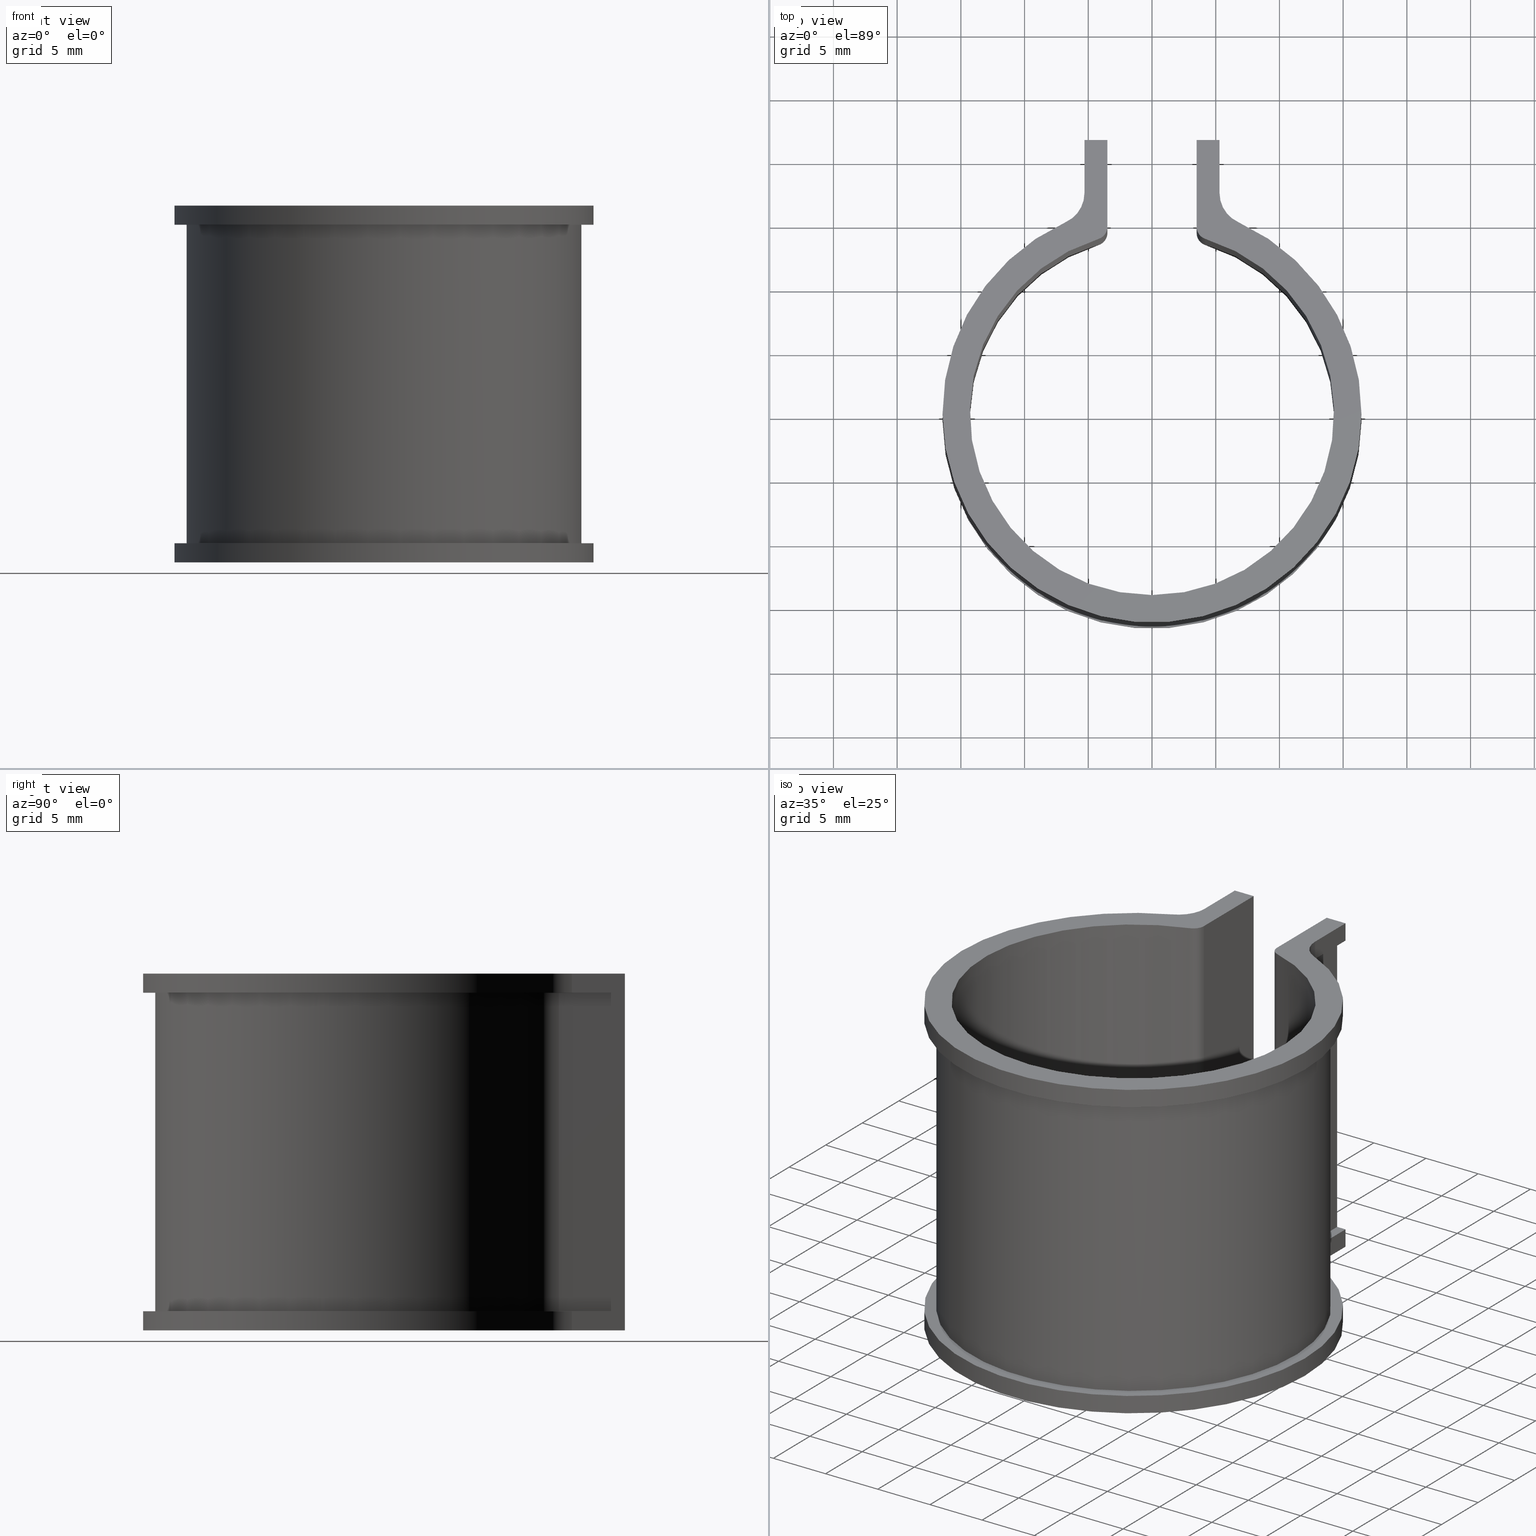
[diagram: canonical four-view strip — front | top / right | iso, engineering-drawing reading convention]
A machine part, canonical four-view strip (front | top / right | iso — engineering-drawing reading convention). The complete STEP part file that produces these views, byte-faithful:
ISO-10303-21;
HEADER;
FILE_DESCRIPTION( ( 'STEP AP203' ), '1' );
FILE_NAME( 'C:/Documents and Settings/JP/�f�X�N�g�b�v/�_�E�����[�h�pCAD�f�[�^/�p�C�v�}�[�J�[/25SU/25SU.step', '2022-07-20T05:23:00', ( ' ' ), ( ' ' ), 'XStep 1.0', ' ', ' ' );
FILE_SCHEMA( ( 'CONFIG_CONTROL_DESIGN' ) );
ENDSEC;
DATA;
#1 = DESIGN_CONTEXT( '', #27, 'design' );
#2 = APPLICATION_PROTOCOL_DEFINITION( 'INTERNATIONAL STANDARD', 'config_control_design', 1994, #27 );
#3 = PRODUCT_CATEGORY_RELATIONSHIP( 'NONE', 'NONE', #28, #29 );
#4 = DATE_AND_TIME( #30, #31 );
#5 = DATE_TIME_ROLE( 'creation_date' );
#6 = DATE_TIME_ROLE( 'classification_date' );
#7 = PERSON_AND_ORGANIZATION_ROLE( 'creator' );
#8 = PERSON_AND_ORGANIZATION_ROLE( 'design_supplier' );
#9 = PERSON_AND_ORGANIZATION_ROLE( 'classification_officer' );
#10 = PERSON_AND_ORGANIZATION_ROLE( 'design_owner' );
#11 = APPROVAL_PERSON_ORGANIZATION( #32, #33, #34 );
#12 = APPROVAL_DATE_TIME( #4, #33 );
#13 = CC_DESIGN_APPROVAL( #33, ( #35, #36, #37 ) );
#14 = CC_DESIGN_DATE_AND_TIME_ASSIGNMENT( #4, #5, ( #37 ) );
#15 = CC_DESIGN_DATE_AND_TIME_ASSIGNMENT( #4, #6, ( #35 ) );
#16 = CC_DESIGN_PERSON_AND_ORGANIZATION_ASSIGNMENT( #32, #10, ( #38 ) );
#17 = CC_DESIGN_PERSON_AND_ORGANIZATION_ASSIGNMENT( #32, #7, ( #37 ) );
#18 = CC_DESIGN_PERSON_AND_ORGANIZATION_ASSIGNMENT( #32, #7, ( #36 ) );
#19 = CC_DESIGN_PERSON_AND_ORGANIZATION_ASSIGNMENT( #32, #8, ( #36 ) );
#20 = CC_DESIGN_SECURITY_CLASSIFICATION( #35, ( #36 ) );
#21 = CC_DESIGN_PERSON_AND_ORGANIZATION_ASSIGNMENT( #32, #9, ( #35 ) );
#22 = SHAPE_DEFINITION_REPRESENTATION( #39, #40 );
#23 =  ( GEOMETRIC_REPRESENTATION_CONTEXT( 3 )GLOBAL_UNCERTAINTY_ASSIGNED_CONTEXT( ( #43 ) )GLOBAL_UNIT_ASSIGNED_CONTEXT( ( #45, #46, #47 ) )REPRESENTATION_CONTEXT( 'NONE', 'WORKSPACE' ) );
#27 = APPLICATION_CONTEXT( 'CONFIGURATION CONTROLLED 3D DESIGNS OF MECHANICAL PARTS AND ASSEMBLIES' );
#28 = PRODUCT_CATEGORY( 'part', 'NONE' );
#29 = PRODUCT_RELATED_PRODUCT_CATEGORY( 'detail', ' ', ( #38 ) );
#30 = CALENDAR_DATE( 2022, 20, 6 );
#31 = LOCAL_TIME( 14, 23, 0.000000000000000, #49 );
#32 = PERSON_AND_ORGANIZATION( #50, #51 );
#33 = APPROVAL( #52, 'SOLID MODEL' );
#34 = APPROVAL_ROLE( 'APPROVED' );
#35 = SECURITY_CLASSIFICATION( '', '', #53 );
#36 = PRODUCT_DEFINITION_FORMATION_WITH_SPECIFIED_SOURCE( ' ', 'NONE', #38, .NOT_KNOWN. );
#37 = PRODUCT_DEFINITION( 'NONE', 'NONE', #36, #1 );
#38 = PRODUCT( '1', '1', 'PART-1-DESC', ( #54 ) );
#39 = PRODUCT_DEFINITION_SHAPE( 'NONE', 'NONE', #37 );
#40 = ADVANCED_BREP_SHAPE_REPRESENTATION( '1', ( #55, #56 ), #23 );
#43 = UNCERTAINTY_MEASURE_WITH_UNIT( LENGTH_MEASURE( 0.00100000000000000 ), #45, '', '' );
#45 =  ( CONVERSION_BASED_UNIT( 'MILLIMETRE', #59 )LENGTH_UNIT(  )NAMED_UNIT( #62 ) );
#46 =  ( NAMED_UNIT( #64 )PLANE_ANGLE_UNIT(  )SI_UNIT( $, .RADIAN. ) );
#47 =  ( NAMED_UNIT( #64 )SOLID_ANGLE_UNIT(  )SI_UNIT( $, .STERADIAN. ) );
#49 = COORDINATED_UNIVERSAL_TIME_OFFSET( 9, 0, .AHEAD. );
#50 = PERSON( '', 'UNSPECIFIED', $, $, $, $ );
#51 = ORGANIZATION( 'UNSPECIFIED', 'UNSPECIFIED', 'UNSPECIFIED' );
#52 = APPROVAL_STATUS( 'approved' );
#53 = SECURITY_CLASSIFICATION_LEVEL( 'unclassified' );
#54 = MECHANICAL_CONTEXT( '', #27, 'mechanical' );
#55 = MANIFOLD_SOLID_BREP( '1', #70 );
#56 = AXIS2_PLACEMENT_3D( '', #71, #72, #73 );
#59 = LENGTH_MEASURE_WITH_UNIT( LENGTH_MEASURE( 1.00000000000000 ), #74 );
#62 = DIMENSIONAL_EXPONENTS( 1.00000000000000, 0.000000000000000, 0.000000000000000, 0.000000000000000, 0.000000000000000, 0.000000000000000, 0.000000000000000 );
#64 = DIMENSIONAL_EXPONENTS( 0.000000000000000, 0.000000000000000, 0.000000000000000, 0.000000000000000, 0.000000000000000, 0.000000000000000, 0.000000000000000 );
#70 = CLOSED_SHELL( '', ( #75, #76, #77, #78, #79, #80, #81, #82, #83, #84, #85, #86, #87, #88, #89, #90, #91, #92, #93, #94, #95, #96, #97, #98, #99, #100 ) );
#71 = CARTESIAN_POINT( '', ( 0.000000000000000, 0.000000000000000, 0.000000000000000 ) );
#72 = DIRECTION( '', ( 0.000000000000000, 0.000000000000000, 1.00000000000000 ) );
#73 = DIRECTION( '', ( 1.00000000000000, 0.000000000000000, 0.000000000000000 ) );
#74 =  ( NAMED_UNIT( #62 )LENGTH_UNIT(  )SI_UNIT( .MILLI., .METRE. ) );
#75 = ADVANCED_FACE( '', ( #102 ), #103, .T. );
#76 = ADVANCED_FACE( '', ( #104 ), #105, .T. );
#77 = ADVANCED_FACE( '', ( #106 ), #107, .T. );
#78 = ADVANCED_FACE( '', ( #108 ), #109, .T. );
#79 = ADVANCED_FACE( '', ( #110 ), #111, .T. );
#80 = ADVANCED_FACE( '', ( #112 ), #113, .F. );
#81 = ADVANCED_FACE( '', ( #114 ), #115, .F. );
#82 = ADVANCED_FACE( '', ( #116 ), #117, .T. );
#83 = ADVANCED_FACE( '', ( #118 ), #119, .F. );
#84 = ADVANCED_FACE( '', ( #120 ), #121, .F. );
#85 = ADVANCED_FACE( '', ( #122 ), #123, .T. );
#86 = ADVANCED_FACE( '', ( #124 ), #125, .T. );
#87 = ADVANCED_FACE( '', ( #126 ), #127, .F. );
#88 = ADVANCED_FACE( '', ( #128 ), #129, .F. );
#89 = ADVANCED_FACE( '', ( #130 ), #131, .T. );
#90 = ADVANCED_FACE( '', ( #132 ), #133, .T. );
#91 = ADVANCED_FACE( '', ( #134 ), #135, .F. );
#92 = ADVANCED_FACE( '', ( #136 ), #137, .F. );
#93 = ADVANCED_FACE( '', ( #138 ), #139, .F. );
#94 = ADVANCED_FACE( '', ( #140 ), #141, .F. );
#95 = ADVANCED_FACE( '', ( #142 ), #143, .T. );
#96 = ADVANCED_FACE( '', ( #144 ), #145, .T. );
#97 = ADVANCED_FACE( '', ( #146 ), #147, .T. );
#98 = ADVANCED_FACE( '', ( #148 ), #149, .T. );
#99 = ADVANCED_FACE( '', ( #150 ), #151, .T. );
#100 = ADVANCED_FACE( '', ( #152 ), #153, .F. );
#102 = FACE_OUTER_BOUND( '', #154, .T. );
#103 = PLANE( '', #155 );
#104 = FACE_OUTER_BOUND( '', #156, .T. );
#105 = PLANE( '', #157 );
#106 = FACE_OUTER_BOUND( '', #158, .T. );
#107 = PLANE( '', #159 );
#108 = FACE_OUTER_BOUND( '', #160, .T. );
#109 = PLANE( '', #161 );
#110 = FACE_OUTER_BOUND( '', #162, .T. );
#111 = PLANE( '', #163 );
#112 = FACE_OUTER_BOUND( '', #164, .T. );
#113 = PLANE( '', #165 );
#114 = FACE_OUTER_BOUND( '', #166, .T. );
#115 = PLANE( '', #167 );
#116 = FACE_OUTER_BOUND( '', #168, .T. );
#117 = PLANE( '', #169 );
#118 = FACE_OUTER_BOUND( '', #170, .T. );
#119 = CYLINDRICAL_SURFACE( '', #171, 2.50000000000000 );
#120 = FACE_OUTER_BOUND( '', #172, .T. );
#121 = PLANE( '', #173 );
#122 = FACE_OUTER_BOUND( '', #174, .T. );
#123 = PLANE( '', #175 );
#124 = FACE_OUTER_BOUND( '', #176, .T. );
#125 = CYLINDRICAL_SURFACE( '', #177, 1.00000000000000 );
#126 = FACE_OUTER_BOUND( '', #178, .T. );
#127 = PLANE( '', #179 );
#128 = FACE_OUTER_BOUND( '', #180, .T. );
#129 = CYLINDRICAL_SURFACE( '', #181, 14.2900000000000 );
#130 = FACE_OUTER_BOUND( '', #182, .T. );
#131 = CYLINDRICAL_SURFACE( '', #183, 1.00000000000000 );
#132 = FACE_OUTER_BOUND( '', #184, .T. );
#133 = PLANE( '', #185 );
#134 = FACE_OUTER_BOUND( '', #186, .T. );
#135 = CYLINDRICAL_SURFACE( '', #187, 2.50000000000000 );
#136 = FACE_OUTER_BOUND( '', #188, .T. );
#137 = CYLINDRICAL_SURFACE( '', #189, 2.50000000000000 );
#138 = FACE_OUTER_BOUND( '', #190, .T. );
#139 = CYLINDRICAL_SURFACE( '', #191, 2.50000000000000 );
#140 = FACE_OUTER_BOUND( '', #192, .T. );
#141 = CYLINDRICAL_SURFACE( '', #193, 2.00000000000000 );
#142 = FACE_OUTER_BOUND( '', #194, .T. );
#143 = CYLINDRICAL_SURFACE( '', #195, 15.4900000000000 );
#144 = FACE_OUTER_BOUND( '', #196, .T. );
#145 = PLANE( '', #197 );
#146 = FACE_OUTER_BOUND( '', #198, .T. );
#147 = CYLINDRICAL_SURFACE( '', #199, 16.4400000000000 );
#148 = FACE_OUTER_BOUND( '', #200, .T. );
#149 = CYLINDRICAL_SURFACE( '', #201, 16.4400000000000 );
#150 = FACE_OUTER_BOUND( '', #202, .T. );
#151 = PLANE( '', #203 );
#152 = FACE_OUTER_BOUND( '', #204, .T. );
#153 = CYLINDRICAL_SURFACE( '', #205, 2.00000000000000 );
#154 = EDGE_LOOP( '', ( #206, #207, #208, #209 ) );
#155 = AXIS2_PLACEMENT_3D( '', #210, #211, #212 );
#156 = EDGE_LOOP( '', ( #213, #214, #215, #216, #217, #218, #219, #220, #221, #222, #223, #224 ) );
#157 = AXIS2_PLACEMENT_3D( '', #225, #226, #227 );
#158 = EDGE_LOOP( '', ( #228, #229, #230, #231, #232, #233, #234, #235 ) );
#159 = AXIS2_PLACEMENT_3D( '', #236, #237, #238 );
#160 = EDGE_LOOP( '', ( #239, #240, #241, #242 ) );
#161 = AXIS2_PLACEMENT_3D( '', #243, #244, #245 );
#162 = EDGE_LOOP( '', ( #246, #247, #248, #249 ) );
#163 = AXIS2_PLACEMENT_3D( '', #250, #251, #252 );
#164 = EDGE_LOOP( '', ( #253, #254, #255, #256, #257, #258, #259, #260, #261, #262, #263, #264 ) );
#165 = AXIS2_PLACEMENT_3D( '', #265, #266, #267 );
#166 = EDGE_LOOP( '', ( #268, #269, #270, #271 ) );
#167 = AXIS2_PLACEMENT_3D( '', #272, #273, #274 );
#168 = EDGE_LOOP( '', ( #275, #276, #277, #278, #279, #280, #281, #282, #283, #284, #285, #286 ) );
#169 = AXIS2_PLACEMENT_3D( '', #287, #288, #289 );
#170 = EDGE_LOOP( '', ( #290, #291, #292, #293 ) );
#171 = AXIS2_PLACEMENT_3D( '', #294, #295, #296 );
#172 = EDGE_LOOP( '', ( #297, #298, #299, #300 ) );
#173 = AXIS2_PLACEMENT_3D( '', #301, #302, #303 );
#174 = EDGE_LOOP( '', ( #304, #305, #306, #307, #308, #309, #310, #311 ) );
#175 = AXIS2_PLACEMENT_3D( '', #312, #313, #314 );
#176 = EDGE_LOOP( '', ( #315, #316, #317, #318 ) );
#177 = AXIS2_PLACEMENT_3D( '', #319, #320, #321 );
#178 = EDGE_LOOP( '', ( #322, #323, #324, #325, #326, #327, #328, #329, #330, #331, #332, #333 ) );
#179 = AXIS2_PLACEMENT_3D( '', #334, #335, #336 );
#180 = EDGE_LOOP( '', ( #337, #338, #339, #340 ) );
#181 = AXIS2_PLACEMENT_3D( '', #341, #342, #343 );
#182 = EDGE_LOOP( '', ( #344, #345, #346, #347 ) );
#183 = AXIS2_PLACEMENT_3D( '', #348, #349, #350 );
#184 = EDGE_LOOP( '', ( #351, #352, #353, #354 ) );
#185 = AXIS2_PLACEMENT_3D( '', #355, #356, #357 );
#186 = EDGE_LOOP( '', ( #358, #359, #360, #361 ) );
#187 = AXIS2_PLACEMENT_3D( '', #362, #363, #364 );
#188 = EDGE_LOOP( '', ( #365, #366, #367, #368 ) );
#189 = AXIS2_PLACEMENT_3D( '', #369, #370, #371 );
#190 = EDGE_LOOP( '', ( #372, #373, #374, #375 ) );
#191 = AXIS2_PLACEMENT_3D( '', #376, #377, #378 );
#192 = EDGE_LOOP( '', ( #379, #380, #381, #382 ) );
#193 = AXIS2_PLACEMENT_3D( '', #383, #384, #385 );
#194 = EDGE_LOOP( '', ( #386, #387, #388, #389 ) );
#195 = AXIS2_PLACEMENT_3D( '', #390, #391, #392 );
#196 = EDGE_LOOP( '', ( #393, #394, #395, #396 ) );
#197 = AXIS2_PLACEMENT_3D( '', #397, #398, #399 );
#198 = EDGE_LOOP( '', ( #400, #401, #402, #403 ) );
#199 = AXIS2_PLACEMENT_3D( '', #404, #405, #406 );
#200 = EDGE_LOOP( '', ( #407, #408, #409, #410 ) );
#201 = AXIS2_PLACEMENT_3D( '', #411, #412, #413 );
#202 = EDGE_LOOP( '', ( #414, #415, #416, #417 ) );
#203 = AXIS2_PLACEMENT_3D( '', #418, #419, #420 );
#204 = EDGE_LOOP( '', ( #421, #422, #423, #424 ) );
#205 = AXIS2_PLACEMENT_3D( '', #425, #426, #427 );
#206 = ORIENTED_EDGE( '', *, *, #428, .T. );
#207 = ORIENTED_EDGE( '', *, *, #429, .T. );
#208 = ORIENTED_EDGE( '', *, *, #430, .F. );
#209 = ORIENTED_EDGE( '', *, *, #431, .F. );
#210 = CARTESIAN_POINT( '', ( 3.50000000000000, 21.4219465658192, -25.0000000000000 ) );
#211 = DIRECTION( '', ( -1.00000000000000, 5.55111512312578E-017, 0.000000000000000 ) );
#212 = DIRECTION( '', ( 5.55111512312578E-017, 1.00000000000000, 0.000000000000000 ) );
#213 = ORIENTED_EDGE( '', *, *, #432, .F. );
#214 = ORIENTED_EDGE( '', *, *, #433, .T. );
#215 = ORIENTED_EDGE( '', *, *, #434, .F. );
#216 = ORIENTED_EDGE( '', *, *, #435, .T. );
#217 = ORIENTED_EDGE( '', *, *, #436, .T. );
#218 = ORIENTED_EDGE( '', *, *, #437, .T. );
#219 = ORIENTED_EDGE( '', *, *, #438, .T. );
#220 = ORIENTED_EDGE( '', *, *, #439, .T. );
#221 = ORIENTED_EDGE( '', *, *, #440, .T. );
#222 = ORIENTED_EDGE( '', *, *, #441, .T. );
#223 = ORIENTED_EDGE( '', *, *, #442, .F. );
#224 = ORIENTED_EDGE( '', *, *, #443, .T. );
#225 = CARTESIAN_POINT( '', ( 0.000000000000000, 0.000000000000000, -25.0000000000000 ) );
#226 = DIRECTION( '', ( 0.000000000000000, 0.000000000000000, 1.00000000000000 ) );
#227 = DIRECTION( '', ( 0.000000000000000, 1.00000000000000, 0.000000000000000 ) );
#228 = ORIENTED_EDGE( '', *, *, #444, .T. );
#229 = ORIENTED_EDGE( '', *, *, #445, .T. );
#230 = ORIENTED_EDGE( '', *, *, #446, .F. );
#231 = ORIENTED_EDGE( '', *, *, #447, .F. );
#232 = ORIENTED_EDGE( '', *, *, #448, .F. );
#233 = ORIENTED_EDGE( '', *, *, #449, .T. );
#234 = ORIENTED_EDGE( '', *, *, #450, .T. );
#235 = ORIENTED_EDGE( '', *, *, #435, .F. );
#236 = CARTESIAN_POINT( '', ( -3.50000000000000, 21.4219465658192, -25.0000000000000 ) );
#237 = DIRECTION( '', ( -2.77555756156289E-017, 1.00000000000000, 0.000000000000000 ) );
#238 = DIRECTION( '', ( 1.00000000000000, 2.77555756156289E-017, 0.000000000000000 ) );
#239 = ORIENTED_EDGE( '', *, *, #451, .T. );
#240 = ORIENTED_EDGE( '', *, *, #452, .T. );
#241 = ORIENTED_EDGE( '', *, *, #436, .F. );
#242 = ORIENTED_EDGE( '', *, *, #450, .F. );
#243 = CARTESIAN_POINT( '', ( -5.30000000000000, 21.4219465658192, -26.5000000000000 ) );
#244 = DIRECTION( '', ( -1.00000000000000, 6.12303176911189E-017, 0.000000000000000 ) );
#245 = DIRECTION( '', ( 6.12303176911189E-017, 1.00000000000000, 0.000000000000000 ) );
#246 = ORIENTED_EDGE( '', *, *, #434, .T. );
#247 = ORIENTED_EDGE( '', *, *, #453, .T. );
#248 = ORIENTED_EDGE( '', *, *, #454, .F. );
#249 = ORIENTED_EDGE( '', *, *, #444, .F. );
#250 = CARTESIAN_POINT( '', ( -4.50000000000000, 21.4219465658192, -25.0000000000000 ) );
#251 = DIRECTION( '', ( -1.00000000000000, 5.55111512312578E-017, 0.000000000000000 ) );
#252 = DIRECTION( '', ( 5.55111512312578E-017, 1.00000000000000, 0.000000000000000 ) );
#253 = ORIENTED_EDGE( '', *, *, #454, .T. );
#254 = ORIENTED_EDGE( '', *, *, #455, .T. );
#255 = ORIENTED_EDGE( '', *, *, #456, .T. );
#256 = ORIENTED_EDGE( '', *, *, #457, .T. );
#257 = ORIENTED_EDGE( '', *, *, #458, .T. );
#258 = ORIENTED_EDGE( '', *, *, #459, .F. );
#259 = ORIENTED_EDGE( '', *, *, #460, .F. );
#260 = ORIENTED_EDGE( '', *, *, #461, .T. );
#261 = ORIENTED_EDGE( '', *, *, #462, .F. );
#262 = ORIENTED_EDGE( '', *, *, #463, .T. );
#263 = ORIENTED_EDGE( '', *, *, #464, .F. );
#264 = ORIENTED_EDGE( '', *, *, #445, .F. );
#265 = CARTESIAN_POINT( '', ( 0.000000000000000, 0.000000000000000, 0.000000000000000 ) );
#266 = DIRECTION( '', ( 0.000000000000000, 0.000000000000000, 1.00000000000000 ) );
#267 = DIRECTION( '', ( 0.000000000000000, 1.00000000000000, 0.000000000000000 ) );
#268 = ORIENTED_EDGE( '', *, *, #464, .T. );
#269 = ORIENTED_EDGE( '', *, *, #465, .T. );
#270 = ORIENTED_EDGE( '', *, *, #466, .F. );
#271 = ORIENTED_EDGE( '', *, *, #446, .T. );
#272 = CARTESIAN_POINT( '', ( -5.30000000000000, 21.4219465658192, 1.50000000000000 ) );
#273 = DIRECTION( '', ( 1.00000000000000, -6.12303176911189E-017, 0.000000000000000 ) );
#274 = DIRECTION( '', ( 6.12303176911189E-017, 1.00000000000000, 0.000000000000000 ) );
#275 = ORIENTED_EDGE( '', *, *, #467, .T. );
#276 = ORIENTED_EDGE( '', *, *, #468, .T. );
#277 = ORIENTED_EDGE( '', *, *, #469, .T. );
#278 = ORIENTED_EDGE( '', *, *, #447, .T. );
#279 = ORIENTED_EDGE( '', *, *, #466, .T. );
#280 = ORIENTED_EDGE( '', *, *, #470, .T. );
#281 = ORIENTED_EDGE( '', *, *, #471, .T. );
#282 = ORIENTED_EDGE( '', *, *, #472, .T. );
#283 = ORIENTED_EDGE( '', *, *, #473, .T. );
#284 = ORIENTED_EDGE( '', *, *, #474, .T. );
#285 = ORIENTED_EDGE( '', *, *, #430, .T. );
#286 = ORIENTED_EDGE( '', *, *, #475, .T. );
#287 = CARTESIAN_POINT( '', ( 0.000000000000000, 0.000000000000000, 1.50000000000000 ) );
#288 = DIRECTION( '', ( 0.000000000000000, 0.000000000000000, 1.00000000000000 ) );
#289 = DIRECTION( '', ( 0.000000000000000, 1.00000000000000, 0.000000000000000 ) );
#290 = ORIENTED_EDGE( '', *, *, #472, .F. );
#291 = ORIENTED_EDGE( '', *, *, #476, .F. );
#292 = ORIENTED_EDGE( '', *, *, #461, .F. );
#293 = ORIENTED_EDGE( '', *, *, #477, .F. );
#294 = CARTESIAN_POINT( '', ( 7.80000000000000, 17.2593047368659, 1.50000000000000 ) );
#295 = DIRECTION( '', ( 0.000000000000000, 0.000000000000000, 1.00000000000000 ) );
#296 = DIRECTION( '', ( -1.00000000000000, 0.000000000000000, 0.000000000000000 ) );
#297 = ORIENTED_EDGE( '', *, *, #473, .F. );
#298 = ORIENTED_EDGE( '', *, *, #477, .T. );
#299 = ORIENTED_EDGE( '', *, *, #460, .T. );
#300 = ORIENTED_EDGE( '', *, *, #478, .F. );
#301 = CARTESIAN_POINT( '', ( 5.30000000000000, 15.5622491947662, 1.50000000000000 ) );
#302 = DIRECTION( '', ( -1.00000000000000, 6.12303176911189E-017, 0.000000000000000 ) );
#303 = DIRECTION( '', ( -6.12303176911189E-017, -1.00000000000000, 0.000000000000000 ) );
#304 = ORIENTED_EDGE( '', *, *, #431, .T. );
#305 = ORIENTED_EDGE( '', *, *, #474, .F. );
#306 = ORIENTED_EDGE( '', *, *, #478, .T. );
#307 = ORIENTED_EDGE( '', *, *, #459, .T. );
#308 = ORIENTED_EDGE( '', *, *, #479, .F. );
#309 = ORIENTED_EDGE( '', *, *, #441, .F. );
#310 = ORIENTED_EDGE( '', *, *, #480, .F. );
#311 = ORIENTED_EDGE( '', *, *, #481, .T. );
#312 = CARTESIAN_POINT( '', ( 4.50000000000000, 21.4219465658192, -25.0000000000000 ) );
#313 = DIRECTION( '', ( -2.77555756156289E-017, 1.00000000000000, 0.000000000000000 ) );
#314 = DIRECTION( '', ( 1.00000000000000, 2.77555756156289E-017, 0.000000000000000 ) );
#315 = ORIENTED_EDGE( '', *, *, #482, .F. );
#316 = ORIENTED_EDGE( '', *, *, #483, .F. );
#317 = ORIENTED_EDGE( '', *, *, #475, .F. );
#318 = ORIENTED_EDGE( '', *, *, #429, .F. );
#319 = CARTESIAN_POINT( '', ( 4.50000000000000, 14.6128060275910, -25.0000000000000 ) );
#320 = DIRECTION( '', ( 0.000000000000000, 0.000000000000000, -1.00000000000000 ) );
#321 = DIRECTION( '', ( 1.00000000000000, 0.000000000000000, 0.000000000000000 ) );
#322 = ORIENTED_EDGE( '', *, *, #484, .F. );
#323 = ORIENTED_EDGE( '', *, *, #485, .T. );
#324 = ORIENTED_EDGE( '', *, *, #486, .F. );
#325 = ORIENTED_EDGE( '', *, *, #482, .T. );
#326 = ORIENTED_EDGE( '', *, *, #428, .F. );
#327 = ORIENTED_EDGE( '', *, *, #481, .F. );
#328 = ORIENTED_EDGE( '', *, *, #487, .F. );
#329 = ORIENTED_EDGE( '', *, *, #488, .T. );
#330 = ORIENTED_EDGE( '', *, *, #489, .F. );
#331 = ORIENTED_EDGE( '', *, *, #490, .T. );
#332 = ORIENTED_EDGE( '', *, *, #451, .F. );
#333 = ORIENTED_EDGE( '', *, *, #449, .F. );
#334 = CARTESIAN_POINT( '', ( 0.000000000000000, 0.000000000000000, -26.5000000000000 ) );
#335 = DIRECTION( '', ( 0.000000000000000, 0.000000000000000, 1.00000000000000 ) );
#336 = DIRECTION( '', ( 0.000000000000000, 1.00000000000000, 0.000000000000000 ) );
#337 = ORIENTED_EDGE( '', *, *, #486, .T. );
#338 = ORIENTED_EDGE( '', *, *, #491, .T. );
#339 = ORIENTED_EDGE( '', *, *, #467, .F. );
#340 = ORIENTED_EDGE( '', *, *, #483, .T. );
#341 = CARTESIAN_POINT( '', ( 0.000000000000000, 0.000000000000000, -25.0000000000000 ) );
#342 = DIRECTION( '', ( 0.000000000000000, 0.000000000000000, -1.00000000000000 ) );
#343 = DIRECTION( '', ( -0.244926522043387, -0.969541643664536, 0.000000000000000 ) );
#344 = ORIENTED_EDGE( '', *, *, #485, .F. );
#345 = ORIENTED_EDGE( '', *, *, #492, .F. );
#346 = ORIENTED_EDGE( '', *, *, #468, .F. );
#347 = ORIENTED_EDGE( '', *, *, #491, .F. );
#348 = CARTESIAN_POINT( '', ( -4.50000000000000, 14.6128060275910, -25.0000000000000 ) );
#349 = DIRECTION( '', ( 0.000000000000000, 0.000000000000000, -1.00000000000000 ) );
#350 = DIRECTION( '', ( 1.00000000000000, 0.000000000000000, 0.000000000000000 ) );
#351 = ORIENTED_EDGE( '', *, *, #469, .F. );
#352 = ORIENTED_EDGE( '', *, *, #492, .T. );
#353 = ORIENTED_EDGE( '', *, *, #484, .T. );
#354 = ORIENTED_EDGE( '', *, *, #448, .T. );
#355 = CARTESIAN_POINT( '', ( -3.50000000000000, 13.8547500879662, -25.0000000000000 ) );
#356 = DIRECTION( '', ( 1.00000000000000, -5.55111512312578E-017, 0.000000000000000 ) );
#357 = DIRECTION( '', ( -5.55111512312578E-017, -1.00000000000000, 0.000000000000000 ) );
#358 = ORIENTED_EDGE( '', *, *, #470, .F. );
#359 = ORIENTED_EDGE( '', *, *, #465, .F. );
#360 = ORIENTED_EDGE( '', *, *, #463, .F. );
#361 = ORIENTED_EDGE( '', *, *, #493, .F. );
#362 = CARTESIAN_POINT( '', ( -7.80000000000000, 17.2593047368659, 1.50000000000000 ) );
#363 = DIRECTION( '', ( 0.000000000000000, 0.000000000000000, 1.00000000000000 ) );
#364 = DIRECTION( '', ( -1.00000000000000, 0.000000000000000, 0.000000000000000 ) );
#365 = ORIENTED_EDGE( '', *, *, #490, .F. );
#366 = ORIENTED_EDGE( '', *, *, #494, .F. );
#367 = ORIENTED_EDGE( '', *, *, #437, .F. );
#368 = ORIENTED_EDGE( '', *, *, #452, .F. );
#369 = CARTESIAN_POINT( '', ( -7.80000000000000, 17.2593047368659, -26.5000000000000 ) );
#370 = DIRECTION( '', ( 0.000000000000000, 0.000000000000000, -1.00000000000000 ) );
#371 = DIRECTION( '', ( 1.00000000000000, 0.000000000000000, 0.000000000000000 ) );
#372 = ORIENTED_EDGE( '', *, *, #488, .F. );
#373 = ORIENTED_EDGE( '', *, *, #495, .F. );
#374 = ORIENTED_EDGE( '', *, *, #439, .F. );
#375 = ORIENTED_EDGE( '', *, *, #496, .F. );
#376 = CARTESIAN_POINT( '', ( 7.80000000000000, 17.2593047368659, -26.5000000000000 ) );
#377 = DIRECTION( '', ( 0.000000000000000, 0.000000000000000, -1.00000000000000 ) );
#378 = DIRECTION( '', ( 1.00000000000000, 0.000000000000000, 0.000000000000000 ) );
#379 = ORIENTED_EDGE( '', *, *, #433, .F. );
#380 = ORIENTED_EDGE( '', *, *, #497, .F. );
#381 = ORIENTED_EDGE( '', *, *, #455, .F. );
#382 = ORIENTED_EDGE( '', *, *, #453, .F. );
#383 = CARTESIAN_POINT( '', ( -6.50000000000000, 16.2373058110020, -25.0000000000000 ) );
#384 = DIRECTION( '', ( 0.000000000000000, 0.000000000000000, -1.00000000000000 ) );
#385 = DIRECTION( '', ( 1.00000000000000, 0.000000000000000, 0.000000000000000 ) );
#386 = ORIENTED_EDGE( '', *, *, #456, .F. );
#387 = ORIENTED_EDGE( '', *, *, #497, .T. );
#388 = ORIENTED_EDGE( '', *, *, #432, .T. );
#389 = ORIENTED_EDGE( '', *, *, #498, .T. );
#390 = CARTESIAN_POINT( '', ( 0.000000000000000, 0.000000000000000, -25.0000000000000 ) );
#391 = DIRECTION( '', ( 0.000000000000000, 0.000000000000000, -1.00000000000000 ) );
#392 = DIRECTION( '', ( -0.244926522043387, -0.969541643664536, 0.000000000000000 ) );
#393 = ORIENTED_EDGE( '', *, *, #458, .F. );
#394 = ORIENTED_EDGE( '', *, *, #499, .T. );
#395 = ORIENTED_EDGE( '', *, *, #442, .T. );
#396 = ORIENTED_EDGE( '', *, *, #479, .T. );
#397 = CARTESIAN_POINT( '', ( 4.50000000000001, 14.8219465658192, -25.0000000000000 ) );
#398 = DIRECTION( '', ( 1.00000000000000, -5.55111512312578E-017, 0.000000000000000 ) );
#399 = DIRECTION( '', ( -5.55111512312578E-017, -1.00000000000000, 0.000000000000000 ) );
#400 = ORIENTED_EDGE( '', *, *, #462, .T. );
#401 = ORIENTED_EDGE( '', *, *, #476, .T. );
#402 = ORIENTED_EDGE( '', *, *, #471, .F. );
#403 = ORIENTED_EDGE( '', *, *, #493, .T. );
#404 = CARTESIAN_POINT( '', ( 0.000000000000000, 0.000000000000000, 1.50000000000000 ) );
#405 = DIRECTION( '', ( 0.000000000000000, 0.000000000000000, 1.00000000000000 ) );
#406 = DIRECTION( '', ( 0.000000000000000, -1.00000000000000, 0.000000000000000 ) );
#407 = ORIENTED_EDGE( '', *, *, #489, .T. );
#408 = ORIENTED_EDGE( '', *, *, #496, .T. );
#409 = ORIENTED_EDGE( '', *, *, #438, .F. );
#410 = ORIENTED_EDGE( '', *, *, #494, .T. );
#411 = CARTESIAN_POINT( '', ( 0.000000000000000, 0.000000000000000, -26.5000000000000 ) );
#412 = DIRECTION( '', ( 0.000000000000000, 0.000000000000000, -1.00000000000000 ) );
#413 = DIRECTION( '', ( 0.000000000000000, 1.00000000000000, 0.000000000000000 ) );
#414 = ORIENTED_EDGE( '', *, *, #440, .F. );
#415 = ORIENTED_EDGE( '', *, *, #495, .T. );
#416 = ORIENTED_EDGE( '', *, *, #487, .T. );
#417 = ORIENTED_EDGE( '', *, *, #480, .T. );
#418 = CARTESIAN_POINT( '', ( 5.30000000000000, 15.5622491947662, -26.5000000000000 ) );
#419 = DIRECTION( '', ( 1.00000000000000, -6.12303176911189E-017, 0.000000000000000 ) );
#420 = DIRECTION( '', ( -6.12303176911189E-017, -1.00000000000000, 0.000000000000000 ) );
#421 = ORIENTED_EDGE( '', *, *, #443, .F. );
#422 = ORIENTED_EDGE( '', *, *, #499, .F. );
#423 = ORIENTED_EDGE( '', *, *, #457, .F. );
#424 = ORIENTED_EDGE( '', *, *, #498, .F. );
#425 = CARTESIAN_POINT( '', ( 6.50000000000001, 16.2373058110020, -25.0000000000000 ) );
#426 = DIRECTION( '', ( 0.000000000000000, 0.000000000000000, -1.00000000000000 ) );
#427 = DIRECTION( '', ( 1.00000000000000, 0.000000000000000, 0.000000000000000 ) );
#428 = EDGE_CURVE( '', #500, #501, #502, .T. );
#429 = EDGE_CURVE( '', #501, #503, #504, .T. );
#430 = EDGE_CURVE( '', #505, #503, #506, .T. );
#431 = EDGE_CURVE( '', #500, #505, #507, .T. );
#432 = EDGE_CURVE( '', #508, #509, #510, .T. );
#433 = EDGE_CURVE( '', #508, #511, #512, .T. );
#434 = EDGE_CURVE( '', #513, #511, #514, .T. );
#435 = EDGE_CURVE( '', #513, #515, #516, .T. );
#436 = EDGE_CURVE( '', #515, #517, #518, .T. );
#437 = EDGE_CURVE( '', #517, #519, #520, .F. );
#438 = EDGE_CURVE( '', #519, #521, #522, .T. );
#439 = EDGE_CURVE( '', #521, #523, #524, .F. );
#440 = EDGE_CURVE( '', #523, #525, #526, .T. );
#441 = EDGE_CURVE( '', #525, #527, #528, .T. );
#442 = EDGE_CURVE( '', #529, #527, #530, .T. );
#443 = EDGE_CURVE( '', #529, #509, #531, .T. );
#444 = EDGE_CURVE( '', #513, #532, #533, .T. );
#445 = EDGE_CURVE( '', #532, #534, #535, .T. );
#446 = EDGE_CURVE( '', #536, #534, #537, .T. );
#447 = EDGE_CURVE( '', #538, #536, #539, .T. );
#448 = EDGE_CURVE( '', #540, #538, #541, .T. );
#449 = EDGE_CURVE( '', #540, #542, #543, .T. );
#450 = EDGE_CURVE( '', #542, #515, #544, .T. );
#451 = EDGE_CURVE( '', #542, #545, #546, .T. );
#452 = EDGE_CURVE( '', #545, #517, #547, .F. );
#453 = EDGE_CURVE( '', #511, #548, #549, .F. );
#454 = EDGE_CURVE( '', #532, #548, #550, .T. );
#455 = EDGE_CURVE( '', #548, #551, #552, .F. );
#456 = EDGE_CURVE( '', #551, #553, #554, .T. );
#457 = EDGE_CURVE( '', #553, #555, #556, .F. );
#458 = EDGE_CURVE( '', #555, #557, #558, .T. );
#459 = EDGE_CURVE( '', #559, #557, #560, .T. );
#460 = EDGE_CURVE( '', #561, #559, #562, .T. );
#461 = EDGE_CURVE( '', #561, #563, #564, .T. );
#462 = EDGE_CURVE( '', #565, #563, #566, .T. );
#463 = EDGE_CURVE( '', #565, #567, #568, .T. );
#464 = EDGE_CURVE( '', #534, #567, #569, .T. );
#465 = EDGE_CURVE( '', #567, #570, #571, .T. );
#466 = EDGE_CURVE( '', #536, #570, #572, .T. );
#467 = EDGE_CURVE( '', #573, #574, #575, .T. );
#468 = EDGE_CURVE( '', #574, #576, #577, .T. );
#469 = EDGE_CURVE( '', #576, #538, #578, .T. );
#470 = EDGE_CURVE( '', #570, #579, #580, .F. );
#471 = EDGE_CURVE( '', #579, #581, #582, .T. );
#472 = EDGE_CURVE( '', #581, #583, #584, .F. );
#473 = EDGE_CURVE( '', #583, #585, #586, .T. );
#474 = EDGE_CURVE( '', #585, #505, #587, .T. );
#475 = EDGE_CURVE( '', #503, #573, #588, .T. );
#476 = EDGE_CURVE( '', #563, #581, #589, .F. );
#477 = EDGE_CURVE( '', #583, #561, #590, .F. );
#478 = EDGE_CURVE( '', #585, #559, #591, .T. );
#479 = EDGE_CURVE( '', #527, #557, #592, .T. );
#480 = EDGE_CURVE( '', #593, #525, #594, .T. );
#481 = EDGE_CURVE( '', #593, #500, #595, .T. );
#482 = EDGE_CURVE( '', #596, #501, #597, .F. );
#483 = EDGE_CURVE( '', #573, #596, #598, .F. );
#484 = EDGE_CURVE( '', #599, #540, #600, .T. );
#485 = EDGE_CURVE( '', #599, #601, #602, .F. );
#486 = EDGE_CURVE( '', #596, #601, #603, .T. );
#487 = EDGE_CURVE( '', #604, #593, #605, .T. );
#488 = EDGE_CURVE( '', #604, #606, #607, .T. );
#489 = EDGE_CURVE( '', #608, #606, #609, .T. );
#490 = EDGE_CURVE( '', #608, #545, #610, .T. );
#491 = EDGE_CURVE( '', #601, #574, #611, .T. );
#492 = EDGE_CURVE( '', #576, #599, #612, .F. );
#493 = EDGE_CURVE( '', #579, #565, #613, .T. );
#494 = EDGE_CURVE( '', #519, #608, #614, .F. );
#495 = EDGE_CURVE( '', #523, #604, #615, .T. );
#496 = EDGE_CURVE( '', #606, #521, #616, .T. );
#497 = EDGE_CURVE( '', #551, #508, #617, .F. );
#498 = EDGE_CURVE( '', #509, #553, #618, .T. );
#499 = EDGE_CURVE( '', #555, #529, #619, .T. );
#500 = VERTEX_POINT( '', #620 );
#501 = VERTEX_POINT( '', #621 );
#502 = LINE( '', #622, #623 );
#503 = VERTEX_POINT( '', #624 );
#504 = LINE( '', #625, #626 );
#505 = VERTEX_POINT( '', #627 );
#506 = LINE( '', #628, #629 );
#507 = LINE( '', #630, #631 );
#508 = VERTEX_POINT( '', #632 );
#509 = VERTEX_POINT( '', #633 );
#510 = CIRCLE( '', #634, 15.4900000000000 );
#511 = VERTEX_POINT( '', #635 );
#512 = CIRCLE( '', #636, 2.00000000000000 );
#513 = VERTEX_POINT( '', #637 );
#514 = LINE( '', #638, #639 );
#515 = VERTEX_POINT( '', #640 );
#516 = LINE( '', #641, #642 );
#517 = VERTEX_POINT( '', #643 );
#518 = LINE( '', #644, #645 );
#519 = VERTEX_POINT( '', #646 );
#520 = CIRCLE( '', #647, 2.50000000000000 );
#521 = VERTEX_POINT( '', #648 );
#522 = CIRCLE( '', #649, 16.4400000000000 );
#523 = VERTEX_POINT( '', #650 );
#524 = CIRCLE( '', #651, 2.50000000000000 );
#525 = VERTEX_POINT( '', #652 );
#526 = LINE( '', #653, #654 );
#527 = VERTEX_POINT( '', #655 );
#528 = LINE( '', #656, #657 );
#529 = VERTEX_POINT( '', #658 );
#530 = LINE( '', #659, #660 );
#531 = CIRCLE( '', #661, 2.00000000000000 );
#532 = VERTEX_POINT( '', #662 );
#533 = LINE( '', #663, #664 );
#534 = VERTEX_POINT( '', #665 );
#535 = LINE( '', #666, #667 );
#536 = VERTEX_POINT( '', #668 );
#537 = LINE( '', #669, #670 );
#538 = VERTEX_POINT( '', #671 );
#539 = LINE( '', #672, #673 );
#540 = VERTEX_POINT( '', #674 );
#541 = LINE( '', #675, #676 );
#542 = VERTEX_POINT( '', #677 );
#543 = LINE( '', #678, #679 );
#544 = LINE( '', #680, #681 );
#545 = VERTEX_POINT( '', #682 );
#546 = LINE( '', #683, #684 );
#547 = LINE( '', #685, #686 );
#548 = VERTEX_POINT( '', #687 );
#549 = LINE( '', #688, #689 );
#550 = LINE( '', #690, #691 );
#551 = VERTEX_POINT( '', #692 );
#552 = CIRCLE( '', #693, 2.00000000000000 );
#553 = VERTEX_POINT( '', #694 );
#554 = CIRCLE( '', #695, 15.4900000000000 );
#555 = VERTEX_POINT( '', #696 );
#556 = CIRCLE( '', #697, 2.00000000000000 );
#557 = VERTEX_POINT( '', #698 );
#558 = LINE( '', #699, #700 );
#559 = VERTEX_POINT( '', #701 );
#560 = LINE( '', #702, #703 );
#561 = VERTEX_POINT( '', #704 );
#562 = LINE( '', #705, #706 );
#563 = VERTEX_POINT( '', #707 );
#564 = CIRCLE( '', #708, 2.50000000000000 );
#565 = VERTEX_POINT( '', #709 );
#566 = CIRCLE( '', #710, 16.4400000000000 );
#567 = VERTEX_POINT( '', #711 );
#568 = CIRCLE( '', #712, 2.50000000000000 );
#569 = LINE( '', #713, #714 );
#570 = VERTEX_POINT( '', #715 );
#571 = LINE( '', #716, #717 );
#572 = LINE( '', #718, #719 );
#573 = VERTEX_POINT( '', #720 );
#574 = VERTEX_POINT( '', #721 );
#575 = CIRCLE( '', #722, 14.2900000000000 );
#576 = VERTEX_POINT( '', #723 );
#577 = CIRCLE( '', #724, 1.00000000000000 );
#578 = LINE( '', #725, #726 );
#579 = VERTEX_POINT( '', #727 );
#580 = CIRCLE( '', #728, 2.50000000000000 );
#581 = VERTEX_POINT( '', #729 );
#582 = CIRCLE( '', #730, 16.4400000000000 );
#583 = VERTEX_POINT( '', #731 );
#584 = CIRCLE( '', #732, 2.50000000000000 );
#585 = VERTEX_POINT( '', #733 );
#586 = LINE( '', #734, #735 );
#587 = LINE( '', #736, #737 );
#588 = CIRCLE( '', #738, 1.00000000000000 );
#589 = LINE( '', #739, #740 );
#590 = LINE( '', #741, #742 );
#591 = LINE( '', #743, #744 );
#592 = LINE( '', #745, #746 );
#593 = VERTEX_POINT( '', #747 );
#594 = LINE( '', #748, #749 );
#595 = LINE( '', #750, #751 );
#596 = VERTEX_POINT( '', #752 );
#597 = CIRCLE( '', #753, 1.00000000000000 );
#598 = LINE( '', #754, #755 );
#599 = VERTEX_POINT( '', #756 );
#600 = LINE( '', #757, #758 );
#601 = VERTEX_POINT( '', #759 );
#602 = CIRCLE( '', #760, 1.00000000000000 );
#603 = CIRCLE( '', #761, 14.2900000000000 );
#604 = VERTEX_POINT( '', #762 );
#605 = LINE( '', #763, #764 );
#606 = VERTEX_POINT( '', #765 );
#607 = CIRCLE( '', #766, 2.50000000000000 );
#608 = VERTEX_POINT( '', #767 );
#609 = CIRCLE( '', #768, 16.4400000000000 );
#610 = CIRCLE( '', #769, 2.50000000000000 );
#611 = LINE( '', #770, #771 );
#612 = LINE( '', #772, #773 );
#613 = LINE( '', #774, #775 );
#614 = LINE( '', #776, #777 );
#615 = LINE( '', #778, #779 );
#616 = LINE( '', #780, #781 );
#617 = LINE( '', #782, #783 );
#618 = LINE( '', #784, #785 );
#619 = LINE( '', #786, #787 );
#620 = CARTESIAN_POINT( '', ( 3.50000000000003, 21.4219465658192, -26.5000000000000 ) );
#621 = CARTESIAN_POINT( '', ( 3.50000000000000, 14.6128060275910, -26.5000000000000 ) );
#622 = CARTESIAN_POINT( '', ( 3.50000000000000, 21.4219465658192, -26.5000000000000 ) );
#623 = VECTOR( '', #788, 1000.00000000000 );
#624 = CARTESIAN_POINT( '', ( 3.50000000000000, 14.6128060275910, 1.50000000000000 ) );
#625 = CARTESIAN_POINT( '', ( 3.50000000000000, 14.6128060275910, -25.0000000000000 ) );
#626 = VECTOR( '', #789, 1000.00000000000 );
#627 = CARTESIAN_POINT( '', ( 3.50000000000003, 21.4219465658192, 1.50000000000000 ) );
#628 = CARTESIAN_POINT( '', ( 3.50000000000000, 21.4219465658192, 1.50000000000000 ) );
#629 = VECTOR( '', #790, 1000.00000000000 );
#630 = CARTESIAN_POINT( '', ( 3.50000000000001, 21.4219465658192, -25.0000000000000 ) );
#631 = VECTOR( '', #791, 1000.00000000000 );
#632 = CARTESIAN_POINT( '', ( -5.75671812464265, 14.3805527165478, -25.0000000000000 ) );
#633 = CARTESIAN_POINT( '', ( 5.75671812464266, 14.3805527165478, -25.0000000000000 ) );
#634 = AXIS2_PLACEMENT_3D( '', #792, #793, #794 );
#635 = CARTESIAN_POINT( '', ( -4.50000000000000, 16.2373058110020, -25.0000000000000 ) );
#636 = AXIS2_PLACEMENT_3D( '', #795, #796, #797 );
#637 = CARTESIAN_POINT( '', ( -4.50000000000000, 21.4219465658192, -25.0000000000000 ) );
#638 = CARTESIAN_POINT( '', ( -4.50000000000000, 21.4219465658192, -25.0000000000000 ) );
#639 = VECTOR( '', #798, 1000.00000000000 );
#640 = CARTESIAN_POINT( '', ( -5.30000000000000, 21.4219465658192, -25.0000000000000 ) );
#641 = CARTESIAN_POINT( '', ( -3.50000000000000, 21.4219465658192, -25.0000000000000 ) );
#642 = VECTOR( '', #799, 1000.00000000000 );
#643 = CARTESIAN_POINT( '', ( -5.30000000000000, 17.2593047368659, -25.0000000000000 ) );
#644 = CARTESIAN_POINT( '', ( -5.30000000000000, 21.4219465658192, -25.0000000000000 ) );
#645 = VECTOR( '', #800, 1000.00000000000 );
#646 = CARTESIAN_POINT( '', ( -6.77043294614572, 14.9811494125699, -25.0000000000000 ) );
#647 = AXIS2_PLACEMENT_3D( '', #801, #802, #803 );
#648 = CARTESIAN_POINT( '', ( 6.77043294614572, 14.9811494125699, -25.0000000000000 ) );
#649 = AXIS2_PLACEMENT_3D( '', #804, #805, #806 );
#650 = CARTESIAN_POINT( '', ( 5.30000000000000, 17.2593047368659, -25.0000000000000 ) );
#651 = AXIS2_PLACEMENT_3D( '', #807, #808, #809 );
#652 = CARTESIAN_POINT( '', ( 5.30000000000000, 21.4219465658192, -25.0000000000000 ) );
#653 = CARTESIAN_POINT( '', ( 5.30000000000000, 15.5622491947662, -25.0000000000000 ) );
#654 = VECTOR( '', #810, 1000.00000000000 );
#655 = CARTESIAN_POINT( '', ( 4.50000000000000, 21.4219465658192, -25.0000000000000 ) );
#656 = CARTESIAN_POINT( '', ( 5.30000000000003, 21.4219465658192, -25.0000000000000 ) );
#657 = VECTOR( '', #811, 1000.00000000000 );
#658 = CARTESIAN_POINT( '', ( 4.50000000000001, 16.2373058110020, -25.0000000000000 ) );
#659 = CARTESIAN_POINT( '', ( 4.50000000000001, 14.8219465658192, -25.0000000000000 ) );
#660 = VECTOR( '', #812, 1000.00000000000 );
#661 = AXIS2_PLACEMENT_3D( '', #813, #814, #815 );
#662 = CARTESIAN_POINT( '', ( -4.50000000000001, 21.4219465658192, 0.000000000000000 ) );
#663 = CARTESIAN_POINT( '', ( -4.50000000000001, 21.4219465658192, -25.0000000000000 ) );
#664 = VECTOR( '', #816, 1000.00000000000 );
#665 = CARTESIAN_POINT( '', ( -5.30000000000000, 21.4219465658192, 0.000000000000000 ) );
#666 = CARTESIAN_POINT( '', ( -3.50000000000000, 21.4219465658192, 0.000000000000000 ) );
#667 = VECTOR( '', #817, 1000.00000000000 );
#668 = CARTESIAN_POINT( '', ( -5.30000000000000, 21.4219465658192, 1.50000000000000 ) );
#669 = CARTESIAN_POINT( '', ( -5.30000000000000, 21.4219465658192, 1.50000000000000 ) );
#670 = VECTOR( '', #818, 1000.00000000000 );
#671 = CARTESIAN_POINT( '', ( -3.50000000000000, 21.4219465658192, 1.50000000000000 ) );
#672 = CARTESIAN_POINT( '', ( -3.50000000000000, 21.4219465658192, 1.50000000000000 ) );
#673 = VECTOR( '', #819, 1000.00000000000 );
#674 = CARTESIAN_POINT( '', ( -3.50000000000000, 21.4219465658192, -26.5000000000000 ) );
#675 = CARTESIAN_POINT( '', ( -3.50000000000000, 21.4219465658192, -25.0000000000000 ) );
#676 = VECTOR( '', #820, 1000.00000000000 );
#677 = CARTESIAN_POINT( '', ( -5.30000000000000, 21.4219465658192, -26.5000000000000 ) );
#678 = CARTESIAN_POINT( '', ( -3.50000000000000, 21.4219465658192, -26.5000000000000 ) );
#679 = VECTOR( '', #821, 1000.00000000000 );
#680 = CARTESIAN_POINT( '', ( -5.30000000000000, 21.4219465658192, -26.5000000000000 ) );
#681 = VECTOR( '', #822, 1000.00000000000 );
#682 = CARTESIAN_POINT( '', ( -5.30000000000000, 17.2593047368659, -26.5000000000000 ) );
#683 = CARTESIAN_POINT( '', ( -5.30000000000000, 21.4219465658192, -26.5000000000000 ) );
#684 = VECTOR( '', #823, 1000.00000000000 );
#685 = CARTESIAN_POINT( '', ( -5.30000000000000, 17.2593047368659, -25.0000000000000 ) );
#686 = VECTOR( '', #824, 1000.00000000000 );
#687 = CARTESIAN_POINT( '', ( -4.50000000000000, 16.2373058110020, 0.000000000000000 ) );
#688 = CARTESIAN_POINT( '', ( -4.50000000000000, 16.2373058110020, 0.000000000000000 ) );
#689 = VECTOR( '', #825, 1000.00000000000 );
#690 = CARTESIAN_POINT( '', ( -4.50000000000000, 21.4219465658192, 0.000000000000000 ) );
#691 = VECTOR( '', #826, 1000.00000000000 );
#692 = CARTESIAN_POINT( '', ( -5.75671812464265, 14.3805527165478, 0.000000000000000 ) );
#693 = AXIS2_PLACEMENT_3D( '', #827, #828, #829 );
#694 = CARTESIAN_POINT( '', ( 5.75671812464266, 14.3805527165478, 0.000000000000000 ) );
#695 = AXIS2_PLACEMENT_3D( '', #830, #831, #832 );
#696 = CARTESIAN_POINT( '', ( 4.50000000000001, 16.2373058110020, 0.000000000000000 ) );
#697 = AXIS2_PLACEMENT_3D( '', #833, #834, #835 );
#698 = CARTESIAN_POINT( '', ( 4.50000000000000, 21.4219465658192, 0.000000000000000 ) );
#699 = CARTESIAN_POINT( '', ( 4.50000000000001, 14.8219465658192, 0.000000000000000 ) );
#700 = VECTOR( '', #836, 1000.00000000000 );
#701 = CARTESIAN_POINT( '', ( 5.30000000000000, 21.4219465658192, 0.000000000000000 ) );
#702 = CARTESIAN_POINT( '', ( 5.30000000000003, 21.4219465658192, 0.000000000000000 ) );
#703 = VECTOR( '', #837, 1000.00000000000 );
#704 = CARTESIAN_POINT( '', ( 5.30000000000000, 17.2593047368659, 0.000000000000000 ) );
#705 = CARTESIAN_POINT( '', ( 5.30000000000000, 15.5622491947662, 0.000000000000000 ) );
#706 = VECTOR( '', #838, 1000.00000000000 );
#707 = CARTESIAN_POINT( '', ( 6.77043294614572, 14.9811494125699, 0.000000000000000 ) );
#708 = AXIS2_PLACEMENT_3D( '', #839, #840, #841 );
#709 = CARTESIAN_POINT( '', ( -6.77043294614572, 14.9811494125699, 0.000000000000000 ) );
#710 = AXIS2_PLACEMENT_3D( '', #842, #843, #844 );
#711 = CARTESIAN_POINT( '', ( -5.30000000000000, 17.2593047368659, 0.000000000000000 ) );
#712 = AXIS2_PLACEMENT_3D( '', #845, #846, #847 );
#713 = CARTESIAN_POINT( '', ( -5.30000000000000, 21.4219465658192, 0.000000000000000 ) );
#714 = VECTOR( '', #848, 1000.00000000000 );
#715 = CARTESIAN_POINT( '', ( -5.30000000000000, 17.2593047368659, 1.50000000000000 ) );
#716 = CARTESIAN_POINT( '', ( -5.30000000000000, 17.2593047368659, 1.50000000000000 ) );
#717 = VECTOR( '', #849, 1000.00000000000 );
#718 = CARTESIAN_POINT( '', ( -5.30000000000000, 21.4219465658192, 1.50000000000000 ) );
#719 = VECTOR( '', #850, 1000.00000000000 );
#720 = CARTESIAN_POINT( '', ( 4.20568999345978, 13.6570960192463, 1.50000000000000 ) );
#721 = CARTESIAN_POINT( '', ( -4.20568999345977, 13.6570960192463, 1.50000000000000 ) );
#722 = AXIS2_PLACEMENT_3D( '', #851, #852, #853 );
#723 = CARTESIAN_POINT( '', ( -3.50000000000000, 14.6128060275910, 1.50000000000000 ) );
#724 = AXIS2_PLACEMENT_3D( '', #854, #855, #856 );
#725 = CARTESIAN_POINT( '', ( -3.50000000000000, 13.8547500879662, 1.50000000000000 ) );
#726 = VECTOR( '', #857, 1000.00000000000 );
#727 = CARTESIAN_POINT( '', ( -6.77043294614572, 14.9811494125699, 1.50000000000000 ) );
#728 = AXIS2_PLACEMENT_3D( '', #858, #859, #860 );
#729 = CARTESIAN_POINT( '', ( 6.77043294614572, 14.9811494125699, 1.50000000000000 ) );
#730 = AXIS2_PLACEMENT_3D( '', #861, #862, #863 );
#731 = CARTESIAN_POINT( '', ( 5.30000000000000, 17.2593047368659, 1.50000000000000 ) );
#732 = AXIS2_PLACEMENT_3D( '', #864, #865, #866 );
#733 = CARTESIAN_POINT( '', ( 5.30000000000000, 21.4219465658192, 1.50000000000000 ) );
#734 = CARTESIAN_POINT( '', ( 5.30000000000000, 15.5622491947662, 1.50000000000000 ) );
#735 = VECTOR( '', #867, 1000.00000000000 );
#736 = CARTESIAN_POINT( '', ( 5.30000000000003, 21.4219465658192, 1.50000000000000 ) );
#737 = VECTOR( '', #868, 1000.00000000000 );
#738 = AXIS2_PLACEMENT_3D( '', #869, #870, #871 );
#739 = CARTESIAN_POINT( '', ( 6.77043294614572, 14.9811494125699, 1.50000000000000 ) );
#740 = VECTOR( '', #872, 1000.00000000000 );
#741 = CARTESIAN_POINT( '', ( 5.30000000000000, 17.2593047368659, 0.000000000000000 ) );
#742 = VECTOR( '', #873, 1000.00000000000 );
#743 = CARTESIAN_POINT( '', ( 5.30000000000000, 21.4219465658192, 1.50000000000000 ) );
#744 = VECTOR( '', #874, 1000.00000000000 );
#745 = CARTESIAN_POINT( '', ( 4.50000000000001, 21.4219465658192, -25.0000000000000 ) );
#746 = VECTOR( '', #875, 1000.00000000000 );
#747 = CARTESIAN_POINT( '', ( 5.30000000000000, 21.4219465658192, -26.5000000000000 ) );
#748 = CARTESIAN_POINT( '', ( 5.30000000000000, 21.4219465658192, -26.5000000000000 ) );
#749 = VECTOR( '', #876, 1000.00000000000 );
#750 = CARTESIAN_POINT( '', ( 5.30000000000003, 21.4219465658192, -26.5000000000000 ) );
#751 = VECTOR( '', #877, 1000.00000000000 );
#752 = CARTESIAN_POINT( '', ( 4.20568999345978, 13.6570960192463, -26.5000000000000 ) );
#753 = AXIS2_PLACEMENT_3D( '', #878, #879, #880 );
#754 = CARTESIAN_POINT( '', ( 4.20568999345978, 13.6570960192463, -25.0000000000000 ) );
#755 = VECTOR( '', #881, 1000.00000000000 );
#756 = CARTESIAN_POINT( '', ( -3.50000000000000, 14.6128060275910, -26.5000000000000 ) );
#757 = CARTESIAN_POINT( '', ( -3.50000000000000, 13.8547500879662, -26.5000000000000 ) );
#758 = VECTOR( '', #882, 1000.00000000000 );
#759 = CARTESIAN_POINT( '', ( -4.20568999345977, 13.6570960192463, -26.5000000000000 ) );
#760 = AXIS2_PLACEMENT_3D( '', #883, #884, #885 );
#761 = AXIS2_PLACEMENT_3D( '', #886, #887, #888 );
#762 = CARTESIAN_POINT( '', ( 5.30000000000000, 17.2593047368659, -26.5000000000000 ) );
#763 = CARTESIAN_POINT( '', ( 5.30000000000000, 15.5622491947662, -26.5000000000000 ) );
#764 = VECTOR( '', #889, 1000.00000000000 );
#765 = CARTESIAN_POINT( '', ( 6.77043294614572, 14.9811494125699, -26.5000000000000 ) );
#766 = AXIS2_PLACEMENT_3D( '', #890, #891, #892 );
#767 = CARTESIAN_POINT( '', ( -6.77043294614572, 14.9811494125699, -26.5000000000000 ) );
#768 = AXIS2_PLACEMENT_3D( '', #893, #894, #895 );
#769 = AXIS2_PLACEMENT_3D( '', #896, #897, #898 );
#770 = CARTESIAN_POINT( '', ( -4.20568999345978, 13.6570960192463, -25.0000000000000 ) );
#771 = VECTOR( '', #899, 1000.00000000000 );
#772 = CARTESIAN_POINT( '', ( -3.50000000000000, 14.6128060275910, -25.0000000000000 ) );
#773 = VECTOR( '', #900, 1000.00000000000 );
#774 = CARTESIAN_POINT( '', ( -6.77043294614573, 14.9811494125699, 1.50000000000000 ) );
#775 = VECTOR( '', #901, 1000.00000000000 );
#776 = CARTESIAN_POINT( '', ( -6.77043294614573, 14.9811494125699, -26.5000000000000 ) );
#777 = VECTOR( '', #902, 1000.00000000000 );
#778 = CARTESIAN_POINT( '', ( 5.30000000000000, 17.2593047368659, -26.5000000000000 ) );
#779 = VECTOR( '', #903, 1000.00000000000 );
#780 = CARTESIAN_POINT( '', ( 6.77043294614572, 14.9811494125699, -26.5000000000000 ) );
#781 = VECTOR( '', #904, 1000.00000000000 );
#782 = CARTESIAN_POINT( '', ( -5.75671812464265, 14.3805527165478, -25.0000000000000 ) );
#783 = VECTOR( '', #905, 1000.00000000000 );
#784 = CARTESIAN_POINT( '', ( 5.75671812464266, 14.3805527165478, -25.0000000000000 ) );
#785 = VECTOR( '', #906, 1000.00000000000 );
#786 = CARTESIAN_POINT( '', ( 4.50000000000001, 16.2373058110020, -25.0000000000000 ) );
#787 = VECTOR( '', #907, 1000.00000000000 );
#788 = DIRECTION( '', ( -6.12303176911189E-017, -1.00000000000000, 0.000000000000000 ) );
#789 = DIRECTION( '', ( 0.000000000000000, 0.000000000000000, 1.00000000000000 ) );
#790 = DIRECTION( '', ( -6.12303176911189E-017, -1.00000000000000, 0.000000000000000 ) );
#791 = DIRECTION( '', ( 0.000000000000000, 0.000000000000000, 1.00000000000000 ) );
#792 = CARTESIAN_POINT( '', ( 0.000000000000000, 0.000000000000000, -25.0000000000000 ) );
#793 = DIRECTION( '', ( 0.000000000000000, 0.000000000000000, 1.00000000000000 ) );
#794 = DIRECTION( '', ( 1.00000000000000, 0.000000000000000, 0.000000000000000 ) );
#795 = CARTESIAN_POINT( '', ( -6.50000000000000, 16.2373058110020, -25.0000000000000 ) );
#796 = DIRECTION( '', ( 0.000000000000000, 0.000000000000000, 1.00000000000000 ) );
#797 = DIRECTION( '', ( 1.00000000000000, 0.000000000000000, 0.000000000000000 ) );
#798 = DIRECTION( '', ( -5.55111512312578E-017, -1.00000000000000, 0.000000000000000 ) );
#799 = DIRECTION( '', ( -1.00000000000000, 0.000000000000000, 0.000000000000000 ) );
#800 = DIRECTION( '', ( -6.12303176911189E-017, -1.00000000000000, 0.000000000000000 ) );
#801 = CARTESIAN_POINT( '', ( -7.80000000000000, 17.2593047368659, -25.0000000000000 ) );
#802 = DIRECTION( '', ( 0.000000000000000, 0.000000000000000, 1.00000000000000 ) );
#803 = DIRECTION( '', ( 1.00000000000000, 0.000000000000000, 0.000000000000000 ) );
#804 = CARTESIAN_POINT( '', ( 0.000000000000000, 0.000000000000000, -25.0000000000000 ) );
#805 = DIRECTION( '', ( 0.000000000000000, 0.000000000000000, 1.00000000000000 ) );
#806 = DIRECTION( '', ( 1.00000000000000, 0.000000000000000, 0.000000000000000 ) );
#807 = CARTESIAN_POINT( '', ( 7.80000000000000, 17.2593047368659, -25.0000000000000 ) );
#808 = DIRECTION( '', ( 0.000000000000000, 0.000000000000000, 1.00000000000000 ) );
#809 = DIRECTION( '', ( 1.00000000000000, 0.000000000000000, 0.000000000000000 ) );
#810 = DIRECTION( '', ( 6.12303176911189E-017, 1.00000000000000, 0.000000000000000 ) );
#811 = DIRECTION( '', ( -1.00000000000000, 0.000000000000000, 0.000000000000000 ) );
#812 = DIRECTION( '', ( 5.55111512312578E-017, 1.00000000000000, 0.000000000000000 ) );
#813 = CARTESIAN_POINT( '', ( 6.50000000000001, 16.2373058110020, -25.0000000000000 ) );
#814 = DIRECTION( '', ( 0.000000000000000, 0.000000000000000, 1.00000000000000 ) );
#815 = DIRECTION( '', ( 1.00000000000000, 0.000000000000000, 0.000000000000000 ) );
#816 = DIRECTION( '', ( 0.000000000000000, 0.000000000000000, 1.00000000000000 ) );
#817 = DIRECTION( '', ( -1.00000000000000, 0.000000000000000, 0.000000000000000 ) );
#818 = DIRECTION( '', ( 0.000000000000000, 0.000000000000000, -1.00000000000000 ) );
#819 = DIRECTION( '', ( -1.00000000000000, 0.000000000000000, 0.000000000000000 ) );
#820 = DIRECTION( '', ( 0.000000000000000, 0.000000000000000, 1.00000000000000 ) );
#821 = DIRECTION( '', ( -1.00000000000000, 0.000000000000000, 0.000000000000000 ) );
#822 = DIRECTION( '', ( 0.000000000000000, 0.000000000000000, 1.00000000000000 ) );
#823 = DIRECTION( '', ( -6.12303176911189E-017, -1.00000000000000, 0.000000000000000 ) );
#824 = DIRECTION( '', ( 0.000000000000000, 0.000000000000000, -1.00000000000000 ) );
#825 = DIRECTION( '', ( 0.000000000000000, 0.000000000000000, -1.00000000000000 ) );
#826 = DIRECTION( '', ( -5.55111512312578E-017, -1.00000000000000, 0.000000000000000 ) );
#827 = CARTESIAN_POINT( '', ( -6.50000000000000, 16.2373058110020, 0.000000000000000 ) );
#828 = DIRECTION( '', ( 0.000000000000000, 0.000000000000000, 1.00000000000000 ) );
#829 = DIRECTION( '', ( 1.00000000000000, 0.000000000000000, 0.000000000000000 ) );
#830 = CARTESIAN_POINT( '', ( 0.000000000000000, 0.000000000000000, 0.000000000000000 ) );
#831 = DIRECTION( '', ( 0.000000000000000, 0.000000000000000, 1.00000000000000 ) );
#832 = DIRECTION( '', ( 1.00000000000000, 0.000000000000000, 0.000000000000000 ) );
#833 = CARTESIAN_POINT( '', ( 6.50000000000001, 16.2373058110020, 0.000000000000000 ) );
#834 = DIRECTION( '', ( 0.000000000000000, 0.000000000000000, 1.00000000000000 ) );
#835 = DIRECTION( '', ( 1.00000000000000, 0.000000000000000, 0.000000000000000 ) );
#836 = DIRECTION( '', ( 5.55111512312578E-017, 1.00000000000000, 0.000000000000000 ) );
#837 = DIRECTION( '', ( -1.00000000000000, 0.000000000000000, 0.000000000000000 ) );
#838 = DIRECTION( '', ( 6.12303176911189E-017, 1.00000000000000, 0.000000000000000 ) );
#839 = CARTESIAN_POINT( '', ( 7.80000000000000, 17.2593047368659, 0.000000000000000 ) );
#840 = DIRECTION( '', ( 0.000000000000000, 0.000000000000000, 1.00000000000000 ) );
#841 = DIRECTION( '', ( 1.00000000000000, 0.000000000000000, 0.000000000000000 ) );
#842 = CARTESIAN_POINT( '', ( 0.000000000000000, 0.000000000000000, 0.000000000000000 ) );
#843 = DIRECTION( '', ( 0.000000000000000, 0.000000000000000, 1.00000000000000 ) );
#844 = DIRECTION( '', ( 1.00000000000000, 0.000000000000000, 0.000000000000000 ) );
#845 = CARTESIAN_POINT( '', ( -7.80000000000000, 17.2593047368659, 0.000000000000000 ) );
#846 = DIRECTION( '', ( 0.000000000000000, 0.000000000000000, 1.00000000000000 ) );
#847 = DIRECTION( '', ( 1.00000000000000, 0.000000000000000, 0.000000000000000 ) );
#848 = DIRECTION( '', ( -6.12303176911189E-017, -1.00000000000000, 0.000000000000000 ) );
#849 = DIRECTION( '', ( 0.000000000000000, 0.000000000000000, 1.00000000000000 ) );
#850 = DIRECTION( '', ( -6.12303176911189E-017, -1.00000000000000, 0.000000000000000 ) );
#851 = CARTESIAN_POINT( '', ( 0.000000000000000, 0.000000000000000, 1.50000000000000 ) );
#852 = DIRECTION( '', ( 0.000000000000000, 0.000000000000000, -1.00000000000000 ) );
#853 = DIRECTION( '', ( 1.00000000000000, 0.000000000000000, 0.000000000000000 ) );
#854 = CARTESIAN_POINT( '', ( -4.50000000000000, 14.6128060275910, 1.50000000000000 ) );
#855 = DIRECTION( '', ( 0.000000000000000, 0.000000000000000, 1.00000000000000 ) );
#856 = DIRECTION( '', ( 1.00000000000000, 0.000000000000000, 0.000000000000000 ) );
#857 = DIRECTION( '', ( 6.12303176911189E-017, 1.00000000000000, 0.000000000000000 ) );
#858 = CARTESIAN_POINT( '', ( -7.80000000000000, 17.2593047368659, 1.50000000000000 ) );
#859 = DIRECTION( '', ( 0.000000000000000, 0.000000000000000, 1.00000000000000 ) );
#860 = DIRECTION( '', ( 1.00000000000000, 0.000000000000000, 0.000000000000000 ) );
#861 = CARTESIAN_POINT( '', ( 0.000000000000000, 0.000000000000000, 1.50000000000000 ) );
#862 = DIRECTION( '', ( 0.000000000000000, 0.000000000000000, 1.00000000000000 ) );
#863 = DIRECTION( '', ( 1.00000000000000, 0.000000000000000, 0.000000000000000 ) );
#864 = CARTESIAN_POINT( '', ( 7.80000000000000, 17.2593047368659, 1.50000000000000 ) );
#865 = DIRECTION( '', ( 0.000000000000000, 0.000000000000000, 1.00000000000000 ) );
#866 = DIRECTION( '', ( 1.00000000000000, 0.000000000000000, 0.000000000000000 ) );
#867 = DIRECTION( '', ( 6.12303176911189E-017, 1.00000000000000, 0.000000000000000 ) );
#868 = DIRECTION( '', ( -1.00000000000000, 0.000000000000000, 0.000000000000000 ) );
#869 = CARTESIAN_POINT( '', ( 4.50000000000000, 14.6128060275910, 1.50000000000000 ) );
#870 = DIRECTION( '', ( 0.000000000000000, 0.000000000000000, 1.00000000000000 ) );
#871 = DIRECTION( '', ( 1.00000000000000, 0.000000000000000, 0.000000000000000 ) );
#872 = DIRECTION( '', ( 0.000000000000000, 0.000000000000000, -1.00000000000000 ) );
#873 = DIRECTION( '', ( 0.000000000000000, 0.000000000000000, 1.00000000000000 ) );
#874 = DIRECTION( '', ( 0.000000000000000, 0.000000000000000, -1.00000000000000 ) );
#875 = DIRECTION( '', ( 0.000000000000000, 0.000000000000000, 1.00000000000000 ) );
#876 = DIRECTION( '', ( 0.000000000000000, 0.000000000000000, 1.00000000000000 ) );
#877 = DIRECTION( '', ( -1.00000000000000, 0.000000000000000, 0.000000000000000 ) );
#878 = CARTESIAN_POINT( '', ( 4.50000000000000, 14.6128060275910, -26.5000000000000 ) );
#879 = DIRECTION( '', ( 0.000000000000000, 0.000000000000000, 1.00000000000000 ) );
#880 = DIRECTION( '', ( 1.00000000000000, 0.000000000000000, 0.000000000000000 ) );
#881 = DIRECTION( '', ( 0.000000000000000, 0.000000000000000, 1.00000000000000 ) );
#882 = DIRECTION( '', ( 6.12303176911189E-017, 1.00000000000000, 0.000000000000000 ) );
#883 = CARTESIAN_POINT( '', ( -4.50000000000000, 14.6128060275910, -26.5000000000000 ) );
#884 = DIRECTION( '', ( 0.000000000000000, 0.000000000000000, 1.00000000000000 ) );
#885 = DIRECTION( '', ( 1.00000000000000, 0.000000000000000, 0.000000000000000 ) );
#886 = CARTESIAN_POINT( '', ( 0.000000000000000, 0.000000000000000, -26.5000000000000 ) );
#887 = DIRECTION( '', ( 0.000000000000000, 0.000000000000000, -1.00000000000000 ) );
#888 = DIRECTION( '', ( 1.00000000000000, 0.000000000000000, 0.000000000000000 ) );
#889 = DIRECTION( '', ( 6.12303176911189E-017, 1.00000000000000, 0.000000000000000 ) );
#890 = CARTESIAN_POINT( '', ( 7.80000000000000, 17.2593047368659, -26.5000000000000 ) );
#891 = DIRECTION( '', ( 0.000000000000000, 0.000000000000000, 1.00000000000000 ) );
#892 = DIRECTION( '', ( 1.00000000000000, 0.000000000000000, 0.000000000000000 ) );
#893 = CARTESIAN_POINT( '', ( 0.000000000000000, 0.000000000000000, -26.5000000000000 ) );
#894 = DIRECTION( '', ( 0.000000000000000, 0.000000000000000, 1.00000000000000 ) );
#895 = DIRECTION( '', ( 1.00000000000000, 0.000000000000000, 0.000000000000000 ) );
#896 = CARTESIAN_POINT( '', ( -7.80000000000000, 17.2593047368659, -26.5000000000000 ) );
#897 = DIRECTION( '', ( 0.000000000000000, 0.000000000000000, 1.00000000000000 ) );
#898 = DIRECTION( '', ( 1.00000000000000, 0.000000000000000, 0.000000000000000 ) );
#899 = DIRECTION( '', ( 0.000000000000000, 0.000000000000000, 1.00000000000000 ) );
#900 = DIRECTION( '', ( 0.000000000000000, 0.000000000000000, 1.00000000000000 ) );
#901 = DIRECTION( '', ( 0.000000000000000, 0.000000000000000, -1.00000000000000 ) );
#902 = DIRECTION( '', ( 0.000000000000000, 0.000000000000000, 1.00000000000000 ) );
#903 = DIRECTION( '', ( 0.000000000000000, 0.000000000000000, -1.00000000000000 ) );
#904 = DIRECTION( '', ( 0.000000000000000, 0.000000000000000, 1.00000000000000 ) );
#905 = DIRECTION( '', ( 0.000000000000000, 0.000000000000000, 1.00000000000000 ) );
#906 = DIRECTION( '', ( 0.000000000000000, 0.000000000000000, 1.00000000000000 ) );
#907 = DIRECTION( '', ( 0.000000000000000, 0.000000000000000, -1.00000000000000 ) );
ENDSEC;
END-ISO-10303-21;
